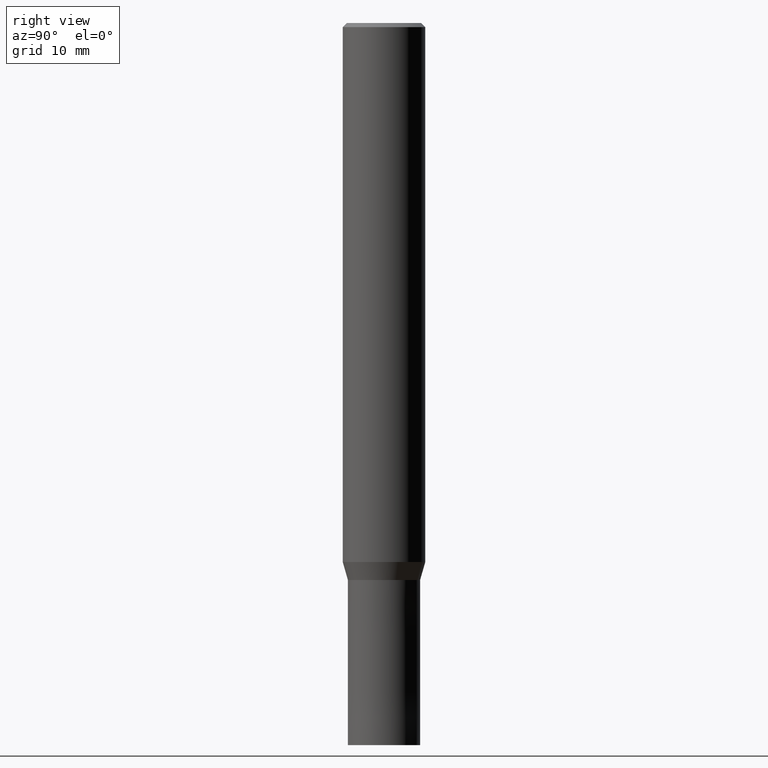
[diagram: clean part render]
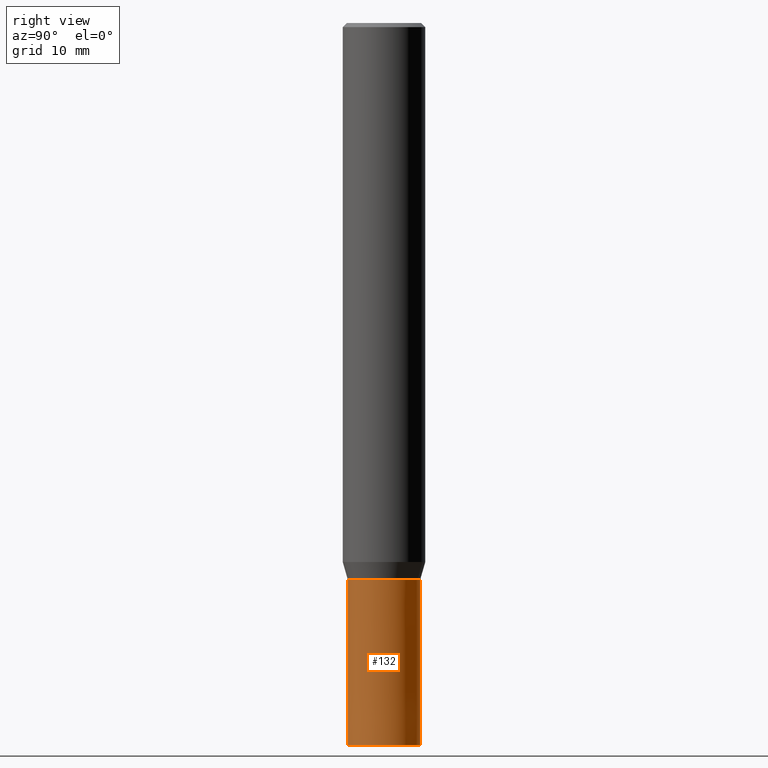
[diagram: same view with one face highlighted and labeled with its STEP entity id]
A machine part, right view. The second image highlights one B-rep face of the part: STEP entity #132.
In plain terms, the highlighted conical surface has half-angle 0 deg.
Its self-contained STEP definition (entity closure, byte-faithful):
#88=EDGE_CURVE('',#180,#156,#209,.T.);
#114=VERTEX_POINT('',#241);
#118=EDGE_CURVE('',#154,#114,#245,.T.);
#126=EDGE_CURVE('',#114,#156,#253,.T.);
#132=ADVANCED_FACE('',(#259),#260,.T.);
#142=EDGE_CURVE('',#180,#154,#270,.T.);
#154=VERTEX_POINT('',#285);
#156=VERTEX_POINT('',#287);
#180=VERTEX_POINT('',#314);
#209=CIRCLE('',#338,3.4999);
#241=CARTESIAN_POINT('',(4.28612223837832E-016,-3.5,-70.0));
#245=CIRCLE('',#383,3.5);
#253=LINE('',#395,#396);
#259=FACE_OUTER_BOUND('',#404,.T.);
#260=CONICAL_SURFACE('',#405,3.49995,6.24999999993181E-006);
#270=LINE('',#418,#419);
#285=CARTESIAN_POINT('',(0.0,3.5,-70.0));
#287=CARTESIAN_POINT('',(4.28599977774294E-016,-3.4999,-54.0));
#314=CARTESIAN_POINT('',(0.0,3.4999,-54.0));
#338=AXIS2_PLACEMENT_3D('',#479,#480,#481);
#383=AXIS2_PLACEMENT_3D('',#539,#540,#541);
#395=CARTESIAN_POINT('',(4.28606100806063E-016,-3.49995,-62.0));
#396=VECTOR('',#546,1.0);
#404=EDGE_LOOP('',(#549,#550,#551,#552));
#405=AXIS2_PLACEMENT_3D('',#553,#554,#555);
#418=CARTESIAN_POINT('',(-4.28606100806063E-016,3.49995,-62.0));
#419=VECTOR('',#557,1.0);
#479=CARTESIAN_POINT('',(0.0,0.0,-54.0));
#480=DIRECTION('',(0.0,0.0,-1.0));
#481=DIRECTION('',(0.0,1.0,0.0));
#539=CARTESIAN_POINT('',(0.0,0.0,-70.0));
#540=DIRECTION('',(0.0,0.0,-1.0));
#541=DIRECTION('',(0.0,1.0,0.0));
#546=DIRECTION('',(-7.65378971125652E-022,6.24999999989112E-006,0.999999999980469));
#549=ORIENTED_EDGE('',*,*,#142,.F.);
#550=ORIENTED_EDGE('',*,*,#88,.T.);
#551=ORIENTED_EDGE('',*,*,#126,.F.);
#552=ORIENTED_EDGE('',*,*,#118,.F.);
#553=CARTESIAN_POINT('',(0.0,0.0,-62.0));
#554=DIRECTION('',(0.0,-0.0,-1.0));
#555=DIRECTION('',(0.0,1.0,0.0));
#557=DIRECTION('',(-7.65378971125653E-022,6.24999999989112E-006,-0.999999999980469));